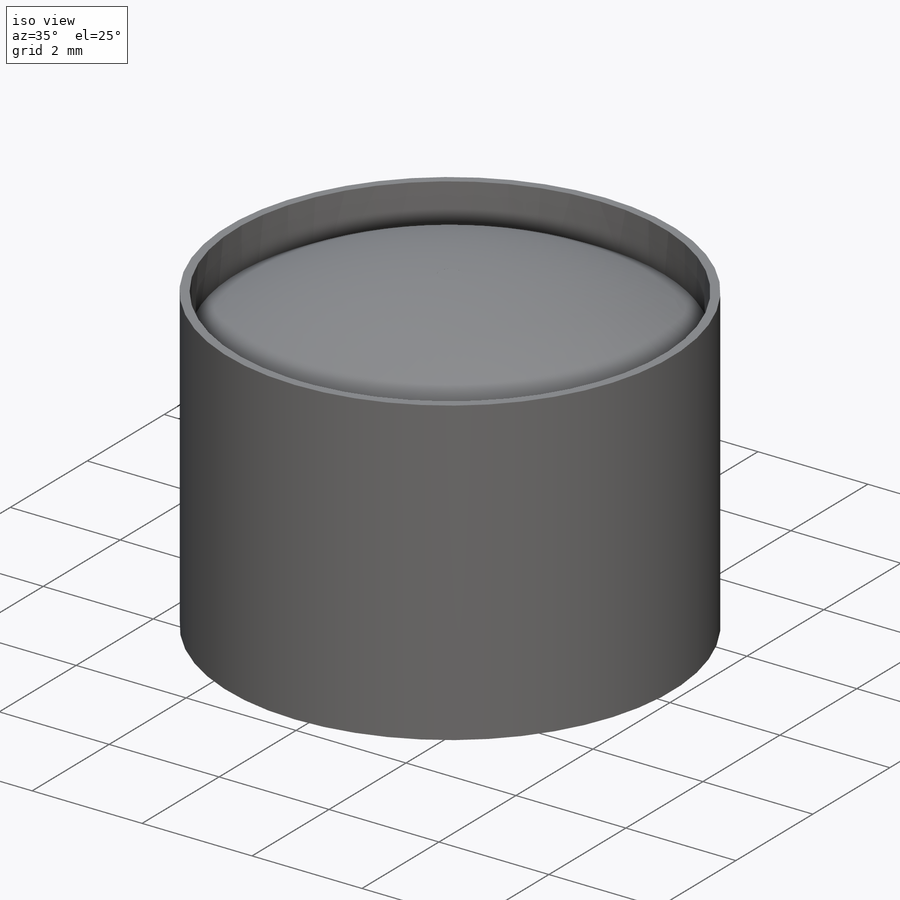
[diagram: iso view]
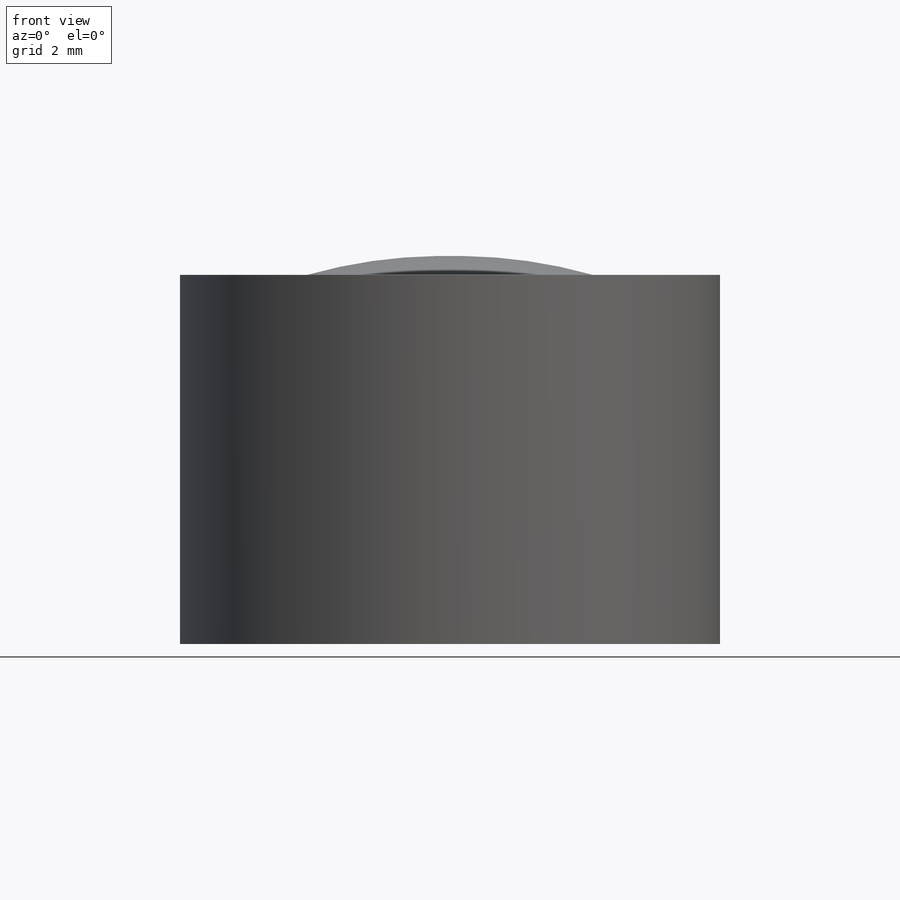
[diagram: front view]
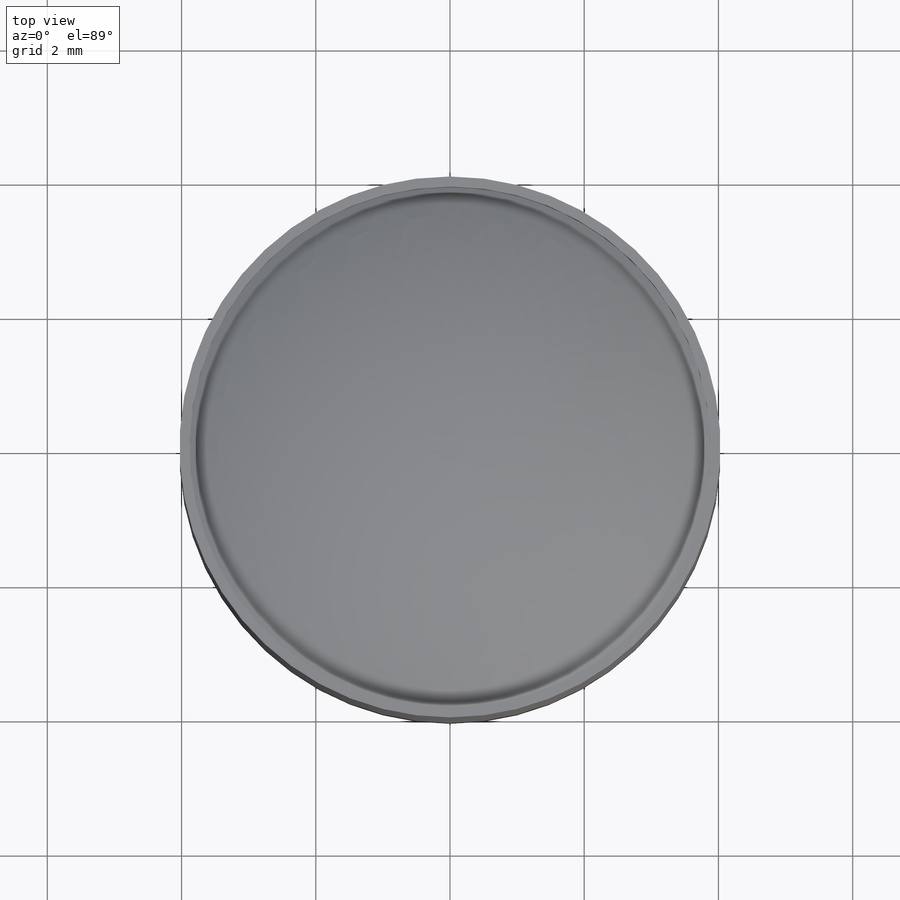
[diagram: top view]
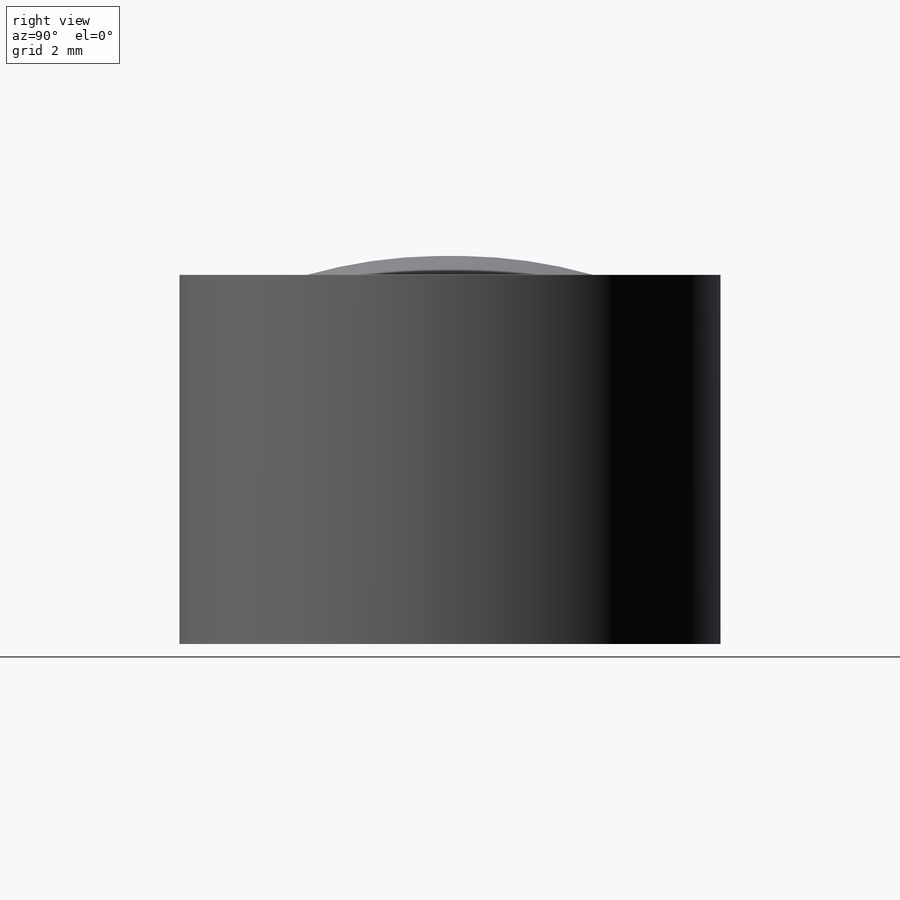
[diagram: right view]
SOLIDWORKS PART (.sldprt)
format: sldprt  version: not decoded by parser v0  size: 200,704 bytes
history: native  units: mm
features: sketch x3, extrude x2, material x1, revolve x1 (+13 scaffold rows collapsed)
feature tree (20):
  scaffold x13  (default folders/planes/origin — collapsed)
  material  "Glass"
  sketch  "Sketch1"  dims[D1=8.0613mm D2=0.15mm]
  extrude  "Boss-Extrude1"  Depth=5.5mm
  sketch  "Sketch2"  dims[D1=0.75mm]
  revolve  "Revolve1"  Angle=360deg
  sketch  "Sketch3"
  extrude  "Boss-Extrude2"  Depth=5.5mm
decode coverage: 5 of 6 modeling features carry decoded parameters
note: suppression state not decoded; provenance and decode notes live in map.json
